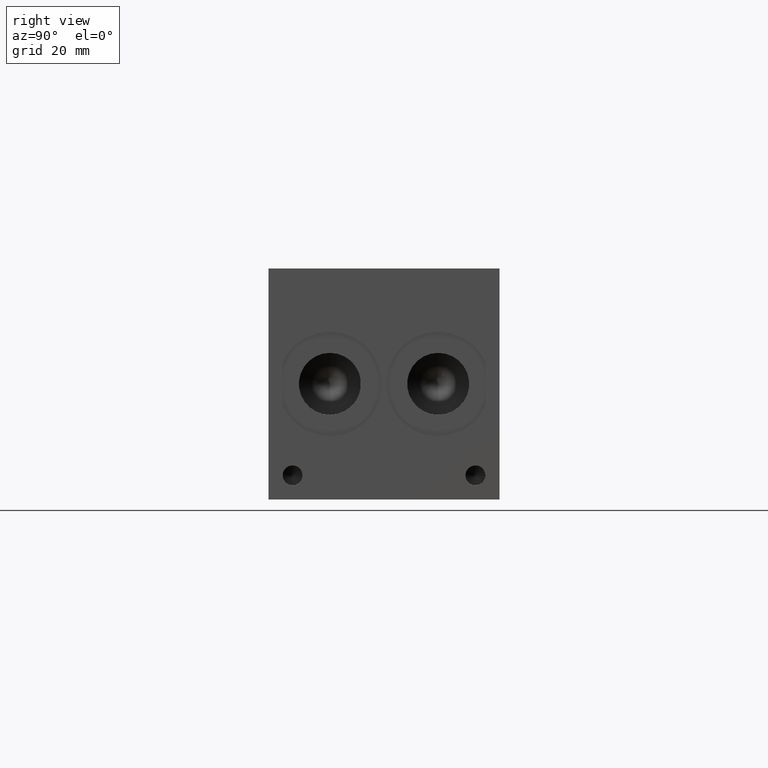
[diagram: clean part render]
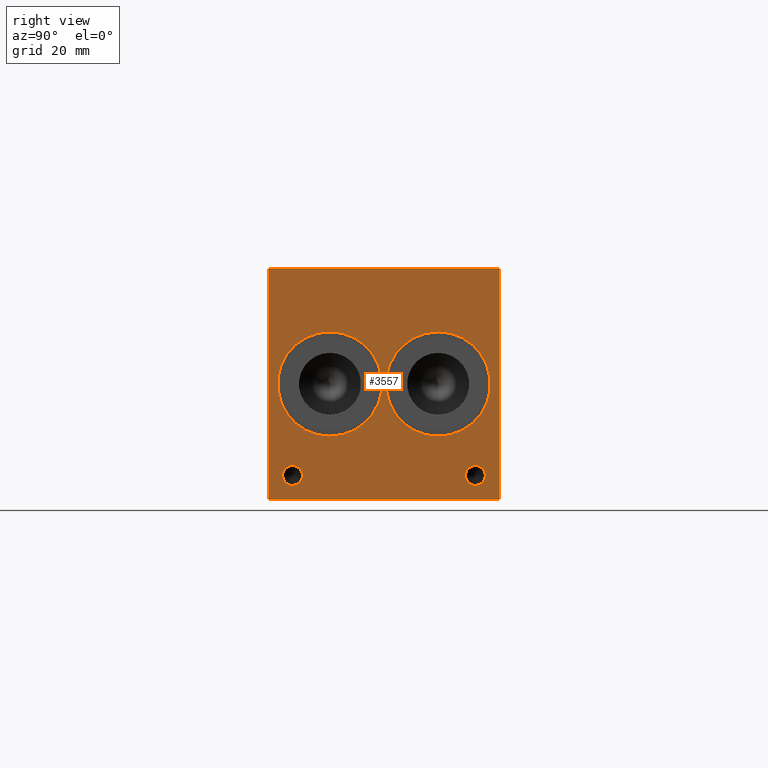
[diagram: same view with one face highlighted and labeled with its STEP entity id]
A machine part, right view. The second image highlights one B-rep face of the part: STEP entity #3557.
In plain terms, the highlighted planar face has unit normal (1, 0, 0).
Its self-contained STEP definition (entity closure, byte-faithful):
#1504=CARTESIAN_POINT('',(215.90000000000003,55.956200000000003,20.891500000000001));
#1505=VERTEX_POINT('',#1504);
#1506=CARTESIAN_POINT('',(215.90000000000003,55.956200000000003,38.100000000000009));
#1507=DIRECTION('',(-1.0,0.0,0.0));
#1508=DIRECTION('',(0.0,0.0,-1.0));
#1509=AXIS2_PLACEMENT_3D('',#1506,#1507,#1508);
#1510=CIRCLE('',#1509,17.208500000000004);
#1511=EDGE_CURVE('',#1505,#1505,#1510,.T.);
#1661=CARTESIAN_POINT('',(215.90000000000003,20.243800000000004,20.891500000000001));
#1662=VERTEX_POINT('',#1661);
#1663=CARTESIAN_POINT('',(215.90000000000003,20.243800000000004,38.100000000000009));
#1664=DIRECTION('',(-1.0,0.0,0.0));
#1665=DIRECTION('',(0.0,0.0,-1.0));
#1666=AXIS2_PLACEMENT_3D('',#1663,#1664,#1665);
#1667=CIRCLE('',#1666,17.208500000000004);
#1668=EDGE_CURVE('',#1662,#1662,#1667,.T.);
#1698=CARTESIAN_POINT('',(215.90000000000003,68.249799999999993,4.660900000000001));
#1699=VERTEX_POINT('',#1698);
#1700=CARTESIAN_POINT('',(215.90000000000003,68.249799999999993,7.924800000000001));
#1701=DIRECTION('',(-1.0,0.0,0.0));
#1702=DIRECTION('',(0.0,0.0,-1.0));
#1703=AXIS2_PLACEMENT_3D('',#1700,#1701,#1702);
#1704=CIRCLE('',#1703,3.2639);
#1705=EDGE_CURVE('',#1699,#1699,#1704,.T.);
#1735=CARTESIAN_POINT('',(215.90000000000003,7.924800000000001,4.660900000000001));
#1736=VERTEX_POINT('',#1735);
#1737=CARTESIAN_POINT('',(215.90000000000003,7.924800000000001,7.924800000000001));
#1738=DIRECTION('',(-1.0,0.0,0.0));
#1739=DIRECTION('',(0.0,0.0,-1.0));
#1740=AXIS2_PLACEMENT_3D('',#1737,#1738,#1739);
#1741=CIRCLE('',#1740,3.2639);
#1742=EDGE_CURVE('',#1736,#1736,#1741,.T.);
#3489=CARTESIAN_POINT('',(215.90000000000003,76.200000000000017,76.200000000000017));
#3490=VERTEX_POINT('',#3489);
#3497=CARTESIAN_POINT('',(215.90000000000003,76.200000000000017,0.0));
#3498=VERTEX_POINT('',#3497);
#3499=CARTESIAN_POINT('',(215.90000000000003,76.200000000000017,0.0));
#3500=DIRECTION('',(0.0,0.0,1.0));
#3501=VECTOR('',#3500,76.200000000000017);
#3502=LINE('',#3499,#3501);
#3503=EDGE_CURVE('',#3498,#3490,#3502,.T.);
#3515=CARTESIAN_POINT('',(215.90000000000003,76.200000000000017,0.0));
#3516=DIRECTION('',(1.0,0.0,0.0));
#3517=DIRECTION('',(0.0,0.0,-1.0));
#3518=AXIS2_PLACEMENT_3D('',#3515,#3516,#3517);
#3519=PLANE('',#3518);
#3520=CARTESIAN_POINT('',(215.90000000000003,0.0,76.200000000000017));
#3521=VERTEX_POINT('',#3520);
#3522=CARTESIAN_POINT('',(215.90000000000003,76.200000000000017,76.200000000000017));
#3523=DIRECTION('',(0.0,-1.0,0.0));
#3524=VECTOR('',#3523,76.200000000000017);
#3525=LINE('',#3522,#3524);
#3526=EDGE_CURVE('',#3490,#3521,#3525,.T.);
#3527=ORIENTED_EDGE('',*,*,#3526,.T.);
#3528=CARTESIAN_POINT('',(215.90000000000003,0.0,0.0));
#3529=VERTEX_POINT('',#3528);
#3530=CARTESIAN_POINT('',(215.90000000000003,0.0,0.0));
#3531=DIRECTION('',(0.0,0.0,1.0));
#3532=VECTOR('',#3531,76.200000000000017);
#3533=LINE('',#3530,#3532);
#3534=EDGE_CURVE('',#3529,#3521,#3533,.T.);
#3535=ORIENTED_EDGE('',*,*,#3534,.F.);
#3536=CARTESIAN_POINT('',(215.90000000000003,0.0,0.0));
#3537=DIRECTION('',(0.0,1.0,0.0));
#3538=VECTOR('',#3537,76.200000000000017);
#3539=LINE('',#3536,#3538);
#3540=EDGE_CURVE('',#3529,#3498,#3539,.T.);
#3541=ORIENTED_EDGE('',*,*,#3540,.T.);
#3542=ORIENTED_EDGE('',*,*,#3503,.T.);
#3543=EDGE_LOOP('',(#3527,#3535,#3541,#3542));
#3544=FACE_OUTER_BOUND('',#3543,.T.);
#3545=ORIENTED_EDGE('',*,*,#1511,.T.);
#3546=EDGE_LOOP('',(#3545));
#3547=FACE_BOUND('',#3546,.T.);
#3548=ORIENTED_EDGE('',*,*,#1668,.T.);
#3549=EDGE_LOOP('',(#3548));
#3550=FACE_BOUND('',#3549,.T.);
#3551=ORIENTED_EDGE('',*,*,#1705,.T.);
#3552=EDGE_LOOP('',(#3551));
#3553=FACE_BOUND('',#3552,.T.);
#3554=ORIENTED_EDGE('',*,*,#1742,.T.);
#3555=EDGE_LOOP('',(#3554));
#3556=FACE_BOUND('',#3555,.T.);
#3557=ADVANCED_FACE('',(#3544,#3547,#3550,#3553,#3556),#3519,.T.);